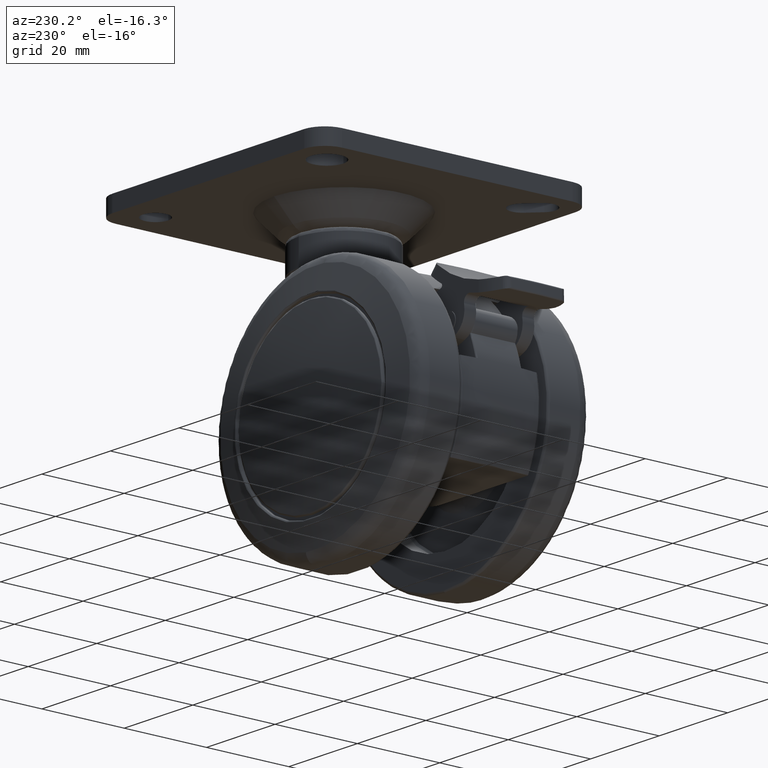
[diagram: clean part render]
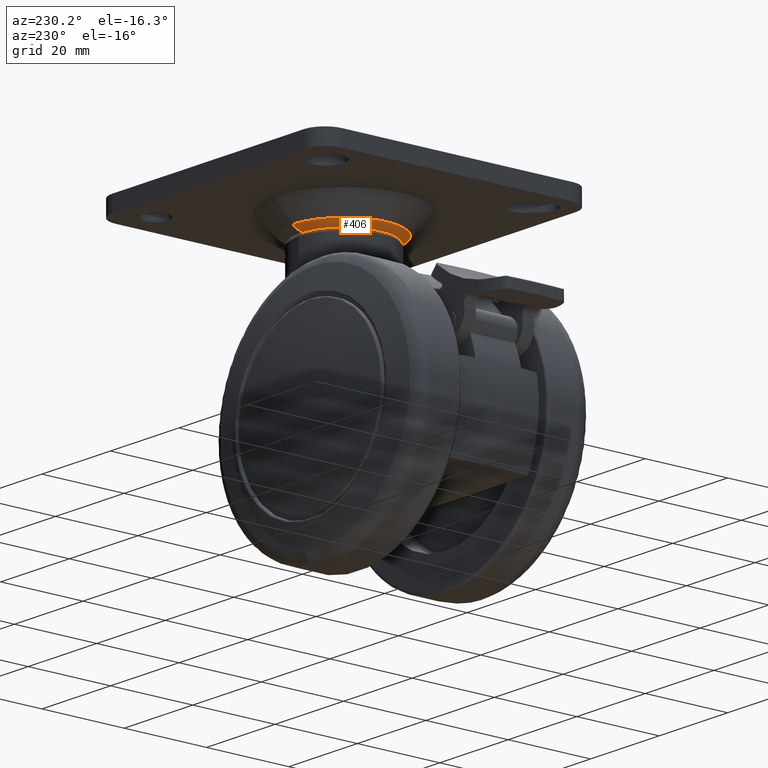
[diagram: same view with one face highlighted and labeled with its STEP entity id]
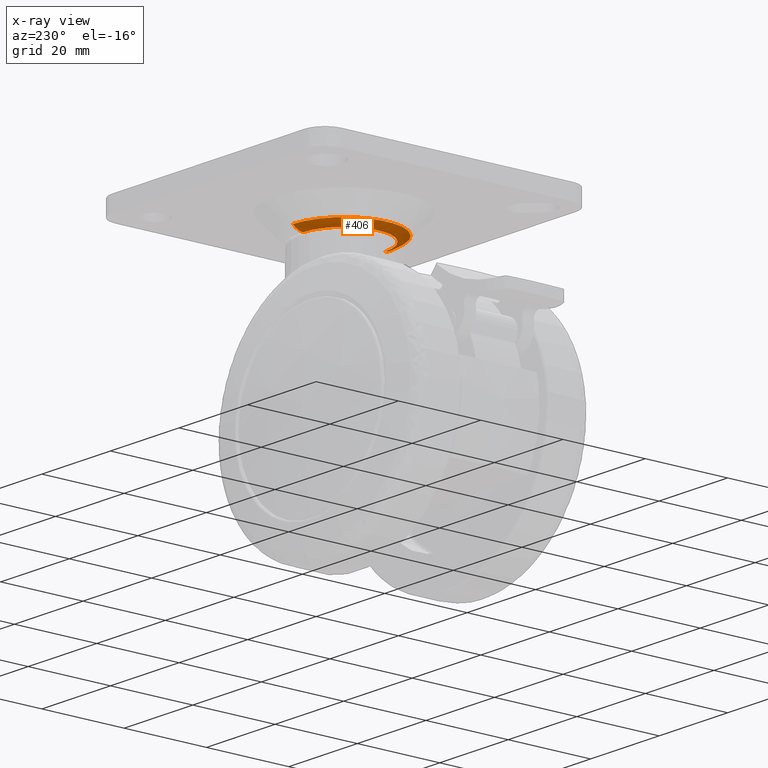
[diagram: x-ray of the same camera — body ghosted, the highlighted face saturated]
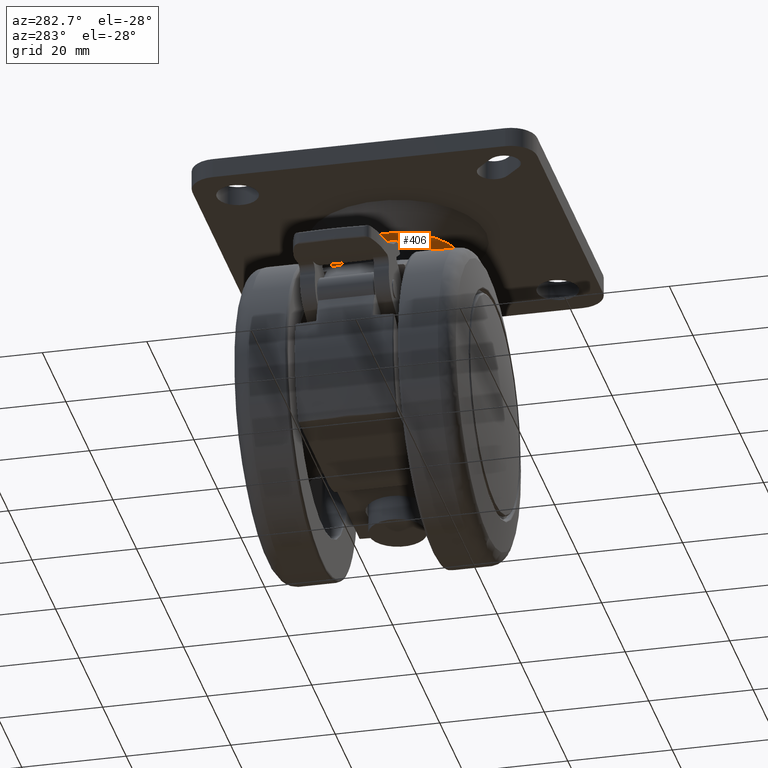
[diagram: same view with one face highlighted and labeled with its STEP entity id]
A machine part, auxiliary view. The second image highlights one B-rep face of the part: STEP entity #406.
The next image is the same camera in x-ray: the body ghosted, the highlighted face saturated — about 0% of this face is hidden behind the body in this view.
A second angle (auxiliary view) of the same face is appended — the face is thin or edge-on in the first view.
In plain terms, the highlighted face is a freeform B-spline surface patch.
Its self-contained STEP definition (entity closure, byte-faithful):
#406=ADVANCED_FACE('',(#2566),#2565,.T.);
#2565=( BOUNDED_SURFACE() B_SPLINE_SURFACE( 2,2,((#7285,#7286,#7287),(#7288,#7289,#7290),(#7291,#7292,#7293),(#7294,#7295,#7296),(#7297,#7298,#7299)), .UNSPECIFIED.,.F.,.F.,.F.) B_SPLINE_SURFACE_WITH_KNOTS((3,2,3),(3,3),(0.00000000000E+00,5.00000000000E-01,1.00000000000E+00),(0.00000000000E+00,1.00000000000E+00), .UNSPECIFIED. ) GEOMETRIC_REPRESENTATION_ITEM() RATIONAL_B_SPLINE_SURFACE(((1.00000000000E+00,7.07106781187E-01,1.00000000000E+00),(7.07106781187E-01,5.00000000000E-01,7.07106781187E-01),(1.00000000000E+00,7.07106781187E-01,1.00000000000E+00),(7.07106781187E-01,5.00000000000E-01,7.07106781187E-01),(1.00000000000E+00,7.07106781187E-01,1.00000000000E+00))) REPRESENTATION_ITEM('') SURFACE() );
#2566=FACE_OUTER_BOUND('',#7300,.T.);
#7285=CARTESIAN_POINT('',(1.09189305814E-14,8.34598911806E+00,-1.24540108819E+01));
#7286=CARTESIAN_POINT('',(8.43913513860E-15,1.11744162428E+01,-9.62558375720E+00));
#7287=CARTESIAN_POINT('',(5.95933969580E-15,8.34598911806E+00,-6.79715663245E+00));
#7288=CARTESIAN_POINT('',(-1.24540108819E+01,8.34598911806E+00,-1.24540108819E+01));
#7289=CARTESIAN_POINT('',(-9.62558375720E+00,1.11744162428E+01,-9.62558375720E+00));
#7290=CARTESIAN_POINT('',(-6.79715663245E+00,8.34598911806E+00,-6.79715663245E+00));
#7291=CARTESIAN_POINT('',(-1.24540108819E+01,8.34598911806E+00,1.90105634265E-14));
#7292=CARTESIAN_POINT('',(-9.62558375720E+00,1.11744162428E+01,3.15389506049E-14));
#7293=CARTESIAN_POINT('',(-6.79715663245E+00,8.34598911806E+00,2.43165367346E-14));
#7294=CARTESIAN_POINT('',(-1.24540108819E+01,8.34598911806E+00,1.24540108819E+01));
#7295=CARTESIAN_POINT('',(-9.62558375720E+00,1.11744162428E+01,9.62558375720E+00));
#7296=CARTESIAN_POINT('',(-6.79715663245E+00,8.34598911806E+00,6.79715663245E+00));
#7297=CARTESIAN_POINT('',(-1.24441070377E-14,8.34598911806E+00,1.24540108819E+01));
#7298=CARTESIAN_POINT('',(-9.61792917241E-15,1.11744162428E+01,9.62558375720E+00));
#7299=CARTESIAN_POINT('',(-6.79175130712E-15,8.34598911806E+00,6.79715663245E+00));
#7300=EDGE_LOOP('',(#8407,#8408,#8409,#8410));
#8407=ORIENTED_EDGE('',*,*,#8975,.T.);
#8408=ORIENTED_EDGE('',*,*,#8987,.F.);
#8409=ORIENTED_EDGE('',*,*,#8968,.F.);
#8410=ORIENTED_EDGE('',*,*,#8988,.T.);
#8968=EDGE_CURVE('',#12303,#12310,#12311,.T.);
#8975=EDGE_CURVE('',#12355,#12356,#12357,.T.);
#8987=EDGE_CURVE('',#12310,#12356,#12433,.T.);
#8988=EDGE_CURVE('',#12303,#12355,#12439,.T.);
#12303=VERTEX_POINT('',#15187);
#12310=VERTEX_POINT('',#15190);
#12311=CIRCLE('',#15194,1.24540108819E+01);
#12355=VERTEX_POINT('',#15215);
#12356=VERTEX_POINT('',#15216);
#12357=CIRCLE('',#15220,1.00000000000E+01);
#12433=(BOUNDED_CURVE() B_SPLINE_CURVE(2,(#15267,#15268,#15269),.UNSPECIFIED.,.F.,.F.) B_SPLINE_CURVE_WITH_KNOTS((3,3),(0.00000000000E+00,4.43380658825E-01),.UNSPECIFIED.) CURVE() GEOMETRIC_REPRESENTATION_ITEM() RATIONAL_B_SPLINE_CURVE((1.00000000000E+00,8.70136811677E-01,8.55431275346E-01)) REPRESENTATION_ITEM('') );
#12439=(BOUNDED_CURVE() B_SPLINE_CURVE(2,(#15270,#15271,#15272),.UNSPECIFIED.,.F.,.F.) B_SPLINE_CURVE_WITH_KNOTS((3,3),(0.00000000000E+00,4.43381064420E-01),.UNSPECIFIED.) CURVE() GEOMETRIC_REPRESENTATION_ITEM() RATIONAL_B_SPLINE_CURVE((7.50000000000E-01,6.52602519661E-01,6.41573436331E-01)) REPRESENTATION_ITEM('') );
#15187=CARTESIAN_POINT('',(-1.09189305814E-14,8.34598911806E+00,1.24540108819E+01));
#15190=CARTESIAN_POINT('',(7.10542735760E-15,8.34598911806E+00,-1.24540108819E+01));
#15191=CARTESIAN_POINT('',(0.00000000000E+00,8.34598911806E+00,4.85722573274E-14));
#15192=DIRECTION('',(6.72560391858E-30,-1.00000000000E+00,-3.42319952582E-15));
#15193=DIRECTION('',(-9.99200722163E-16,-3.42319952582E-15,1.00000000000E+00));
#15194=AXIS2_PLACEMENT_3D('',#15191,#15192,#15193);
#15215=CARTESIAN_POINT('',(-8.76740086780E-15,9.50000000000E+00,1.00000000000E+01));
#15216=CARTESIAN_POINT('',(1.06581410364E-14,9.50000000000E+00,-1.00000000000E+01));
#15217=CARTESIAN_POINT('',(0.00000000000E+00,9.50000000000E+00,3.46944695195E-14));
#15218=DIRECTION('',(6.85501455377E-30,-1.00000000000E+00,-3.55271367880E-15));
#15219=DIRECTION('',(-9.99200722163E-16,-3.55271367880E-15,1.00000000000E+00));
#15220=AXIS2_PLACEMENT_3D('',#15217,#15218,#15219);
#15267=CARTESIAN_POINT('',(1.09189305814E-14,8.34598911806E+00,-1.24540108819E+01));
#15268=CARTESIAN_POINT('',(1.00254398290E-14,9.36509474116E+00,-1.14349052588E+01));
#15269=CARTESIAN_POINT('',(8.76740086436E-15,9.50000000037E+00,-9.99999999607E+00));
#15270=CARTESIAN_POINT('',(-1.00660220899E-14,8.34598911806E+00,1.24540108819E+01));
#15271=CARTESIAN_POINT('',(-9.45630940060E-15,9.36509581255E+00,1.14349041874E+01));
#15272=CARTESIAN_POINT('',(-8.42307403603E-15,9.50000025143E+00,9.99999732570E+00));